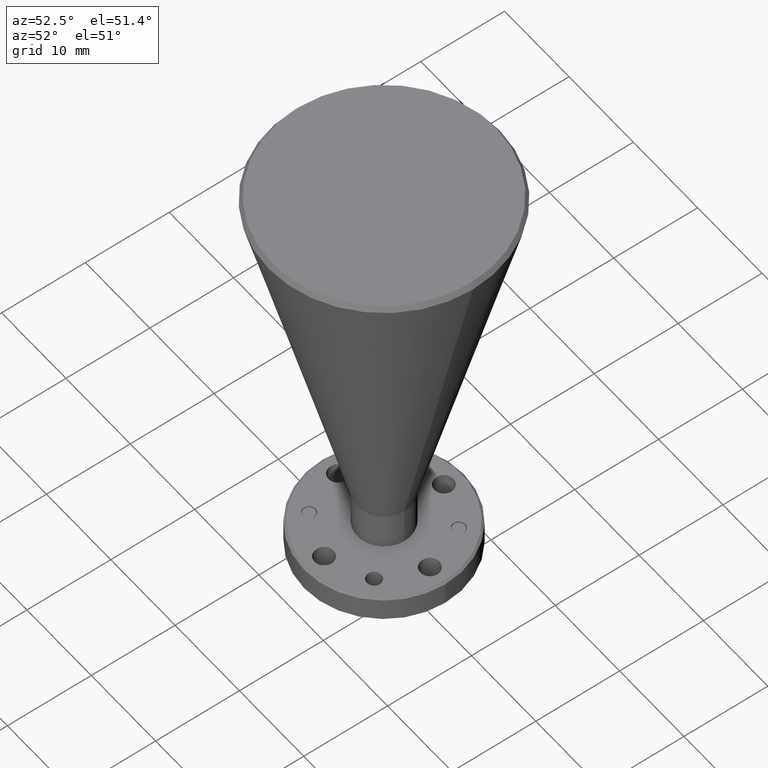
[diagram: clean part render]
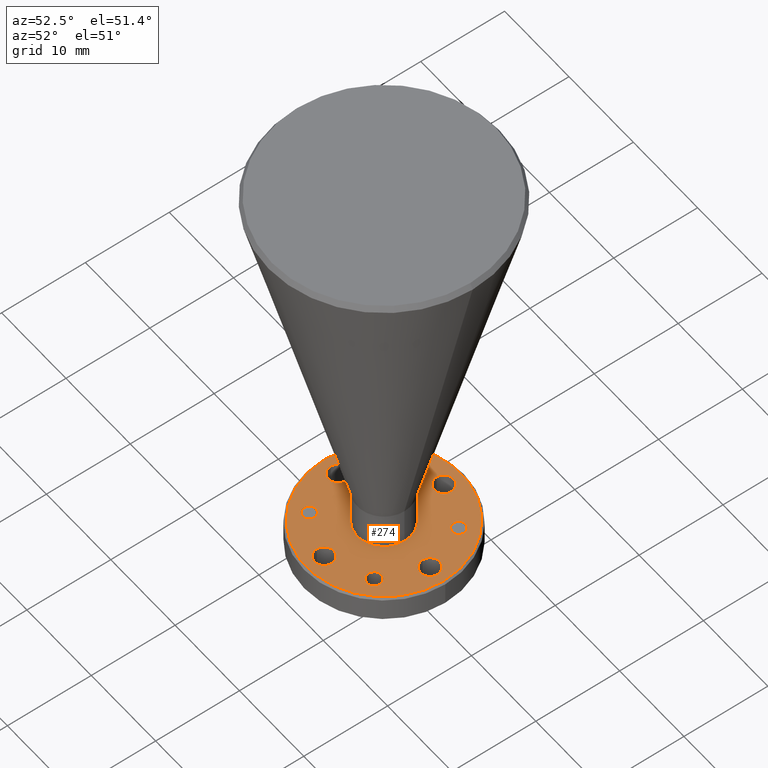
[diagram: same view with one face highlighted and labeled with its STEP entity id]
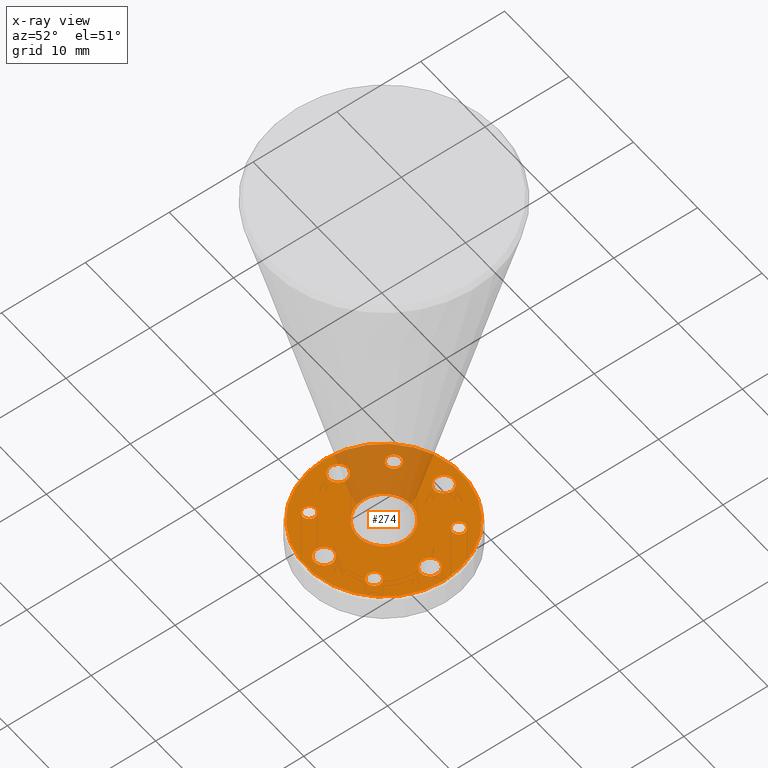
[diagram: x-ray of the same camera — body ghosted, the highlighted face saturated]
A machine part, auxiliary view. The second image highlights one B-rep face of the part: STEP entity #274.
The next image is the same camera in x-ray: the body ghosted, the highlighted face saturated — about 21% of this face is hidden behind the body in this view.
In plain terms, the highlighted planar face has unit normal (0, 0, -1).
Its self-contained STEP definition (entity closure, byte-faithful):
#2 = FACE_BOUND ( 'NONE', #846, .T. ) ;
#4 = EDGE_CURVE ( 'NONE', #1955, #40, #60, .T. ) ;
#6 = AXIS2_PLACEMENT_3D ( 'NONE', #229, #239, #47 ) ;
#35 = CARTESIAN_POINT ( 'NONE',  ( -2.293671977270806300, 1.342798742680591400, -0.5794467715797536600 ) ) ;
#40 = VERTEX_POINT ( 'NONE', #1945 ) ;
#47 = DIRECTION ( 'NONE',  ( -1.000000000000000000, 0.0000000000000000000, 0.0000000000000000000 ) ) ;
#54 = AXIS2_PLACEMENT_3D ( 'NONE', #573, #1686, #881 ) ;
#60 = CIRCLE ( 'NONE', #1168, 0.04449999999999975500 ) ;
#82 = VERTEX_POINT ( 'NONE', #35 ) ;
#93 = CIRCLE ( 'NONE', #1353, 0.04449999999999975500 ) ;
#124 = CIRCLE ( 'NONE', #806, 0.03350000000000006400 ) ;
#136 = DIRECTION ( 'NONE',  ( 0.0000000000000000000, 0.0000000000000000000, -1.000000000000000000 ) ) ;
#143 = DIRECTION ( 'NONE',  ( 0.0000000000000000000, 0.0000000000000000000, -1.000000000000000000 ) ) ;
#155 = VERTEX_POINT ( 'NONE', #1502 ) ;
#189 = ORIENTED_EDGE ( 'NONE', *, *, #387, .T. ) ;
#192 = DIRECTION ( 'NONE',  ( 0.0000000000000000000, 0.0000000000000000000, -1.000000000000000000 ) ) ;
#193 = CIRCLE ( 'NONE', #461, 0.03350000000000006400 ) ;
#196 = EDGE_CURVE ( 'NONE', #1773, #1102, #1963, .T. ) ;
#203 = ORIENTED_EDGE ( 'NONE', *, *, #1071, .T. ) ;
#206 = AXIS2_PLACEMENT_3D ( 'NONE', #1444, #312, #795 ) ;
#215 = DIRECTION ( 'NONE',  ( 0.0000000000000000000, 0.0000000000000000000, -1.000000000000000000 ) ) ;
#222 = DIRECTION ( 'NONE',  ( -0.0000000000000000000, -0.0000000000000000000, 1.000000000000000000 ) ) ;
#229 = CARTESIAN_POINT ( 'NONE',  ( -2.260171977270806200, 1.342798742680591400, -0.5794467715797536600 ) ) ;
#235 = VERTEX_POINT ( 'NONE', #533 ) ;
#239 = DIRECTION ( 'NONE',  ( 0.0000000000000000000, 0.0000000000000000000, -1.000000000000000000 ) ) ;
#253 = ORIENTED_EDGE ( 'NONE', *, *, #196, .T. ) ;
#269 = DIRECTION ( 'NONE',  ( 0.0000000000000000000, 0.0000000000000000000, -1.000000000000000000 ) ) ;
#274 = ADVANCED_FACE ( 'NONE', ( #310, #1836, #2045, #1545, #717, #348, #692, #2, #1067, #1122 ), #1205, .F. ) ;
#276 = CARTESIAN_POINT ( 'NONE',  ( -2.016798195062089700, 1.425174960471875100, -0.5794467715797536600 ) ) ;
#280 = DIRECTION ( 'NONE',  ( -1.000000000000000000, 0.0000000000000000000, 0.0000000000000000000 ) ) ;
#283 = DIRECTION ( 'NONE',  ( -1.000000000000000000, 0.0000000000000000000, 0.0000000000000000000 ) ) ;
#284 = ORIENTED_EDGE ( 'NONE', *, *, #1985, .T. ) ;
#290 = AXIS2_PLACEMENT_3D ( 'NONE', #559, #2004, #860 ) ;
#310 = FACE_OUTER_BOUND ( 'NONE', #1218, .T. ) ;
#312 = DIRECTION ( 'NONE',  ( 0.0000000000000000000, 0.0000000000000000000, -1.000000000000000000 ) ) ;
#335 = ORIENTED_EDGE ( 'NONE', *, *, #964, .T. ) ;
#348 = FACE_BOUND ( 'NONE', #529, .T. ) ;
#349 = VERTEX_POINT ( 'NONE', #1880 ) ;
#373 = CARTESIAN_POINT ( 'NONE',  ( -2.186298195062089400, 1.143924960471874900, -0.5794467715797532200 ) ) ;
#385 = ORIENTED_EDGE ( 'NONE', *, *, #736, .F. ) ;
#387 = EDGE_CURVE ( 'NONE', #560, #1138, #599, .T. ) ;
#393 = VERTEX_POINT ( 'NONE', #1715 ) ;
#421 = EDGE_CURVE ( 'NONE', #1954, #1929, #979, .T. ) ;
#448 = CARTESIAN_POINT ( 'NONE',  ( -2.061298195062089400, 0.8626749604718748600, -0.5794467715797536600 ) ) ;
#449 = CARTESIAN_POINT ( 'NONE',  ( -1.780048195062089400, 1.143924960471874900, -0.5794467715797536600 ) ) ;
#454 = EDGE_CURVE ( 'NONE', #658, #2000, #551, .T. ) ;
#461 = AXIS2_PLACEMENT_3D ( 'NONE', #1106, #143, #1276 ) ;
#463 = CARTESIAN_POINT ( 'NONE',  ( -1.895924412853373200, 0.9450511782631583200, -0.5794467715797536600 ) ) ;
#467 = EDGE_CURVE ( 'NONE', #1777, #1147, #124, .T. ) ;
#483 = DIRECTION ( 'NONE',  ( -1.000000000000000000, 0.0000000000000000000, 0.0000000000000000000 ) ) ;
#501 = CARTESIAN_POINT ( 'NONE',  ( -2.061298195062089400, 0.8626749604718748600, -0.5794467715797536600 ) ) ;
#502 = CIRCLE ( 'NONE', #206, 0.03350000000000006400 ) ;
#506 = CARTESIAN_POINT ( 'NONE',  ( -2.342548195062089900, 1.143924960471874900, -0.5794467715797536600 ) ) ;
#529 = EDGE_LOOP ( 'NONE', ( #537, #1849 ) ) ;
#533 = CARTESIAN_POINT ( 'NONE',  ( -1.893174412853373000, 1.342798742680591400, -0.5794467715797536600 ) ) ;
#537 = ORIENTED_EDGE ( 'NONE', *, *, #454, .T. ) ;
#550 = DIRECTION ( 'NONE',  ( -1.000000000000000000, 0.0000000000000000000, 0.0000000000000000000 ) ) ;
#551 = CIRCLE ( 'NONE', #1493, 0.04449999999999975500 ) ;
#552 = AXIS2_PLACEMENT_3D ( 'NONE', #690, #215, #1184 ) ;
#556 = EDGE_CURVE ( 'NONE', #40, #1955, #93, .T. ) ;
#559 = CARTESIAN_POINT ( 'NONE',  ( -2.061298195062089400, 1.268924960471874900, -0.5794467715797536600 ) ) ;
#560 = VERTEX_POINT ( 'NONE', #1480 ) ;
#566 = DIRECTION ( 'NONE',  ( 0.0000000000000000000, 0.0000000000000000000, -1.000000000000000000 ) ) ;
#573 = CARTESIAN_POINT ( 'NONE',  ( -2.061298195062089400, 1.143924960471874900, -0.5794467715797532200 ) ) ;
#582 = VERTEX_POINT ( 'NONE', #1643 ) ;
#589 = VERTEX_POINT ( 'NONE', #843 ) ;
#599 = CIRCLE ( 'NONE', #1562, 0.04449999999999975500 ) ;
#605 = CARTESIAN_POINT ( 'NONE',  ( -2.061298195062089400, 1.425174960471875100, -0.5794467715797536600 ) ) ;
#608 = DIRECTION ( 'NONE',  ( -1.000000000000000000, 0.0000000000000000000, 0.0000000000000000000 ) ) ;
#619 = DIRECTION ( 'NONE',  ( 0.0000000000000000000, 0.0000000000000000000, -1.000000000000000000 ) ) ;
#639 = EDGE_CURVE ( 'NONE', #155, #82, #755, .T. ) ;
#658 = VERTEX_POINT ( 'NONE', #1347 ) ;
#681 = EDGE_LOOP ( 'NONE', ( #189, #1344 ) ) ;
#689 = CARTESIAN_POINT ( 'NONE',  ( -2.229421977270806400, 0.9450511782631583200, -0.5794467715797536600 ) ) ;
#690 = CARTESIAN_POINT ( 'NONE',  ( -2.061298195062089400, 1.425174960471875100, -0.5794467715797536600 ) ) ;
#692 = FACE_BOUND ( 'NONE', #2027, .T. ) ;
#707 = EDGE_CURVE ( 'NONE', #2000, #658, #2047, .T. ) ;
#716 = EDGE_LOOP ( 'NONE', ( #385, #1302 ) ) ;
#717 = FACE_BOUND ( 'NONE', #1901, .T. ) ;
#727 = DIRECTION ( 'NONE',  ( -0.0000000000000000000, -0.0000000000000000000, 1.000000000000000000 ) ) ;
#736 = EDGE_CURVE ( 'NONE', #349, #1863, #1858, .T. ) ;
#755 = CIRCLE ( 'NONE', #6, 0.03350000000000006400 ) ;
#770 = ORIENTED_EDGE ( 'NONE', *, *, #556, .T. ) ;
#776 = ORIENTED_EDGE ( 'NONE', *, *, #421, .T. ) ;
#780 = EDGE_LOOP ( 'NONE', ( #2062, #1373 ) ) ;
#790 = CARTESIAN_POINT ( 'NONE',  ( -1.735548195062089700, 1.143924960471874900, -0.5794467715797536600 ) ) ;
#795 = DIRECTION ( 'NONE',  ( -1.000000000000000000, 0.0000000000000000000, 0.0000000000000000000 ) ) ;
#805 = CARTESIAN_POINT ( 'NONE',  ( -1.696298195062088100, 1.143924960471874900, -0.5794467715797536600 ) ) ;
#806 = AXIS2_PLACEMENT_3D ( 'NONE', #2087, #136, #1096 ) ;
#843 = CARTESIAN_POINT ( 'NONE',  ( -1.831674412853373100, 1.342798742680591400, -0.5794467715797536600 ) ) ;
#846 = EDGE_LOOP ( 'NONE', ( #2028, #1958 ) ) ;
#849 = CIRCLE ( 'NONE', #2052, 0.04449999999999975500 ) ;
#860 = DIRECTION ( 'NONE',  ( -1.000000000000000000, 0.0000000000000000000, -0.0000000000000000000 ) ) ;
#881 = DIRECTION ( 'NONE',  ( 1.000000000000000000, 0.0000000000000000000, 0.0000000000000000000 ) ) ;
#910 = CARTESIAN_POINT ( 'NONE',  ( -1.780048195062089400, 1.143924960471874900, -0.5794467715797536600 ) ) ;
#949 = CARTESIAN_POINT ( 'NONE',  ( -1.862424412853373100, 1.342798742680591400, -0.5794467715797536600 ) ) ;
#958 = DIRECTION ( 'NONE',  ( 0.0000000000000000000, 0.0000000000000000000, -1.000000000000000000 ) ) ;
#962 = EDGE_CURVE ( 'NONE', #1138, #560, #1259, .T. ) ;
#964 = EDGE_CURVE ( 'NONE', #1102, #1773, #1156, .T. ) ;
#979 = CIRCLE ( 'NONE', #1198, 0.03074999999999993700 ) ;
#1016 = CARTESIAN_POINT ( 'NONE',  ( -2.061298195062089400, 1.143924960471874900, -0.5794467715797532200 ) ) ;
#1029 = ORIENTED_EDGE ( 'NONE', *, *, #4, .T. ) ;
#1049 = AXIS2_PLACEMENT_3D ( 'NONE', #1016, #222, #1513 ) ;
#1067 = FACE_BOUND ( 'NONE', #681, .T. ) ;
#1071 = EDGE_CURVE ( 'NONE', #589, #235, #1510, .T. ) ;
#1079 = CARTESIAN_POINT ( 'NONE',  ( -2.260171977270806200, 0.9450511782631583200, -0.5794467715797536600 ) ) ;
#1085 = CARTESIAN_POINT ( 'NONE',  ( -1.862424412853373100, 1.342798742680591400, -0.5794467715797536600 ) ) ;
#1089 = DIRECTION ( 'NONE',  ( 0.0000000000000000000, 0.0000000000000000000, -1.000000000000000000 ) ) ;
#1096 = DIRECTION ( 'NONE',  ( -1.000000000000000000, 0.0000000000000000000, 0.0000000000000000000 ) ) ;
#1098 = EDGE_CURVE ( 'NONE', #1929, #1954, #1310, .T. ) ;
#1102 = VERTEX_POINT ( 'NONE', #1134 ) ;
#1104 = DIRECTION ( 'NONE',  ( -1.000000000000000000, 0.0000000000000000000, 0.0000000000000000000 ) ) ;
#1106 = CARTESIAN_POINT ( 'NONE',  ( -2.260171977270806200, 1.342798742680591400, -0.5794467715797536600 ) ) ;
#1118 = DIRECTION ( 'NONE',  ( -1.000000000000000000, 0.0000000000000000000, 0.0000000000000000000 ) ) ;
#1122 = FACE_BOUND ( 'NONE', #716, .T. ) ;
#1134 = CARTESIAN_POINT ( 'NONE',  ( -2.426298195062091000, 1.143924960471874900, -0.5794467715797536600 ) ) ;
#1138 = VERTEX_POINT ( 'NONE', #790 ) ;
#1139 = DIRECTION ( 'NONE',  ( 0.0000000000000000000, 0.0000000000000000000, -1.000000000000000000 ) ) ;
#1141 = EDGE_CURVE ( 'NONE', #82, #155, #193, .T. ) ;
#1147 = VERTEX_POINT ( 'NONE', #463 ) ;
#1156 = CIRCLE ( 'NONE', #1580, 0.3650000000000014300 ) ;
#1168 = AXIS2_PLACEMENT_3D ( 'NONE', #1469, #1621, #1453 ) ;
#1184 = DIRECTION ( 'NONE',  ( -1.000000000000000000, 0.0000000000000000000, 0.0000000000000000000 ) ) ;
#1197 = CARTESIAN_POINT ( 'NONE',  ( -2.061298195062089400, 1.143924960471874900, -0.5794467715797536600 ) ) ;
#1198 = AXIS2_PLACEMENT_3D ( 'NONE', #1079, #269, #1104 ) ;
#1205 = PLANE ( 'NONE',  #290 ) ;
#1211 = AXIS2_PLACEMENT_3D ( 'NONE', #1197, #727, #550 ) ;
#1218 = EDGE_LOOP ( 'NONE', ( #335, #253 ) ) ;
#1235 = EDGE_CURVE ( 'NONE', #1147, #1777, #502, .T. ) ;
#1259 = CIRCLE ( 'NONE', #1514, 0.04449999999999975500 ) ;
#1273 = DIRECTION ( 'NONE',  ( -1.000000000000000000, 0.0000000000000000000, 0.0000000000000000000 ) ) ;
#1276 = DIRECTION ( 'NONE',  ( -1.000000000000000000, 0.0000000000000000000, 0.0000000000000000000 ) ) ;
#1298 = AXIS2_PLACEMENT_3D ( 'NONE', #949, #1763, #483 ) ;
#1302 = ORIENTED_EDGE ( 'NONE', *, *, #1547, .F. ) ;
#1310 = CIRCLE ( 'NONE', #1450, 0.03074999999999993700 ) ;
#1328 = DIRECTION ( 'NONE',  ( -1.000000000000000000, 0.0000000000000000000, 0.0000000000000000000 ) ) ;
#1344 = ORIENTED_EDGE ( 'NONE', *, *, #962, .T. ) ;
#1347 = CARTESIAN_POINT ( 'NONE',  ( -2.105798195062089200, 1.425174960471875100, -0.5794467715797536600 ) ) ;
#1353 = AXIS2_PLACEMENT_3D ( 'NONE', #506, #192, #1328 ) ;
#1373 = ORIENTED_EDGE ( 'NONE', *, *, #639, .T. ) ;
#1376 = EDGE_LOOP ( 'NONE', ( #776, #1505 ) ) ;
#1388 = DIRECTION ( 'NONE',  ( -1.000000000000000000, 0.0000000000000000000, 0.0000000000000000000 ) ) ;
#1403 = ORIENTED_EDGE ( 'NONE', *, *, #1235, .T. ) ;
#1414 = DIRECTION ( 'NONE',  ( 0.0000000000000000000, 0.0000000000000000000, -1.000000000000000000 ) ) ;
#1444 = CARTESIAN_POINT ( 'NONE',  ( -1.862424412853373100, 0.9450511782631583200, -0.5794467715797536600 ) ) ;
#1447 = ORIENTED_EDGE ( 'NONE', *, *, #467, .T. ) ;
#1450 = AXIS2_PLACEMENT_3D ( 'NONE', #1456, #958, #1118 ) ;
#1453 = DIRECTION ( 'NONE',  ( -1.000000000000000000, 0.0000000000000000000, 0.0000000000000000000 ) ) ;
#1456 = CARTESIAN_POINT ( 'NONE',  ( -2.260171977270806200, 0.9450511782631583200, -0.5794467715797536600 ) ) ;
#1469 = CARTESIAN_POINT ( 'NONE',  ( -2.342548195062089900, 1.143924960471874900, -0.5794467715797536600 ) ) ;
#1480 = CARTESIAN_POINT ( 'NONE',  ( -1.824548195062089200, 1.143924960471874900, -0.5794467715797536600 ) ) ;
#1493 = AXIS2_PLACEMENT_3D ( 'NONE', #605, #1414, #1273 ) ;
#1500 = AXIS2_PLACEMENT_3D ( 'NONE', #1085, #1089, #283 ) ;
#1502 = CARTESIAN_POINT ( 'NONE',  ( -2.226671977270806100, 1.342798742680591400, -0.5794467715797536600 ) ) ;
#1505 = ORIENTED_EDGE ( 'NONE', *, *, #1098, .T. ) ;
#1510 = CIRCLE ( 'NONE', #1298, 0.03074999999999993700 ) ;
#1513 = DIRECTION ( 'NONE',  ( 1.000000000000000000, 0.0000000000000000000, 0.0000000000000000000 ) ) ;
#1514 = AXIS2_PLACEMENT_3D ( 'NONE', #449, #1887, #1894 ) ;
#1545 = FACE_BOUND ( 'NONE', #780, .T. ) ;
#1547 = EDGE_CURVE ( 'NONE', #1863, #349, #1612, .T. ) ;
#1562 = AXIS2_PLACEMENT_3D ( 'NONE', #910, #566, #1388 ) ;
#1577 = DIRECTION ( 'NONE',  ( -0.0000000000000000000, -0.0000000000000000000, 1.000000000000000000 ) ) ;
#1580 = AXIS2_PLACEMENT_3D ( 'NONE', #2070, #1577, #280 ) ;
#1612 = CIRCLE ( 'NONE', #54, 0.1249999999999999000 ) ;
#1621 = DIRECTION ( 'NONE',  ( 0.0000000000000000000, 0.0000000000000000000, -1.000000000000000000 ) ) ;
#1643 = CARTESIAN_POINT ( 'NONE',  ( -2.016798195062089700, 0.8626749604718748600, -0.5794467715797536600 ) ) ;
#1678 = EDGE_CURVE ( 'NONE', #393, #582, #1881, .T. ) ;
#1686 = DIRECTION ( 'NONE',  ( -0.0000000000000000000, -0.0000000000000000000, 1.000000000000000000 ) ) ;
#1703 = CIRCLE ( 'NONE', #1500, 0.03074999999999993700 ) ;
#1715 = CARTESIAN_POINT ( 'NONE',  ( -2.105798195062089200, 0.8626749604718748600, -0.5794467715797536600 ) ) ;
#1741 = EDGE_CURVE ( 'NONE', #582, #393, #849, .T. ) ;
#1762 = CARTESIAN_POINT ( 'NONE',  ( -1.828924412853373000, 0.9450511782631583200, -0.5794467715797536600 ) ) ;
#1763 = DIRECTION ( 'NONE',  ( 0.0000000000000000000, 0.0000000000000000000, -1.000000000000000000 ) ) ;
#1769 = DIRECTION ( 'NONE',  ( -1.000000000000000000, 0.0000000000000000000, 0.0000000000000000000 ) ) ;
#1773 = VERTEX_POINT ( 'NONE', #805 ) ;
#1777 = VERTEX_POINT ( 'NONE', #1762 ) ;
#1831 = AXIS2_PLACEMENT_3D ( 'NONE', #448, #619, #608 ) ;
#1836 = FACE_BOUND ( 'NONE', #1837, .T. ) ;
#1837 = EDGE_LOOP ( 'NONE', ( #284, #203 ) ) ;
#1849 = ORIENTED_EDGE ( 'NONE', *, *, #707, .T. ) ;
#1858 = CIRCLE ( 'NONE', #1049, 0.1249999999999999000 ) ;
#1863 = VERTEX_POINT ( 'NONE', #373 ) ;
#1880 = CARTESIAN_POINT ( 'NONE',  ( -1.936298195062089700, 1.143924960471874900, -0.5794467715797532200 ) ) ;
#1881 = CIRCLE ( 'NONE', #1831, 0.04449999999999975500 ) ;
#1887 = DIRECTION ( 'NONE',  ( 0.0000000000000000000, 0.0000000000000000000, -1.000000000000000000 ) ) ;
#1894 = DIRECTION ( 'NONE',  ( -1.000000000000000000, 0.0000000000000000000, 0.0000000000000000000 ) ) ;
#1901 = EDGE_LOOP ( 'NONE', ( #1403, #1447 ) ) ;
#1929 = VERTEX_POINT ( 'NONE', #689 ) ;
#1945 = CARTESIAN_POINT ( 'NONE',  ( -2.387048195062089700, 1.143924960471874900, -0.5794467715797536600 ) ) ;
#1954 = VERTEX_POINT ( 'NONE', #2056 ) ;
#1955 = VERTEX_POINT ( 'NONE', #2065 ) ;
#1958 = ORIENTED_EDGE ( 'NONE', *, *, #1741, .T. ) ;
#1963 = CIRCLE ( 'NONE', #1211, 0.3650000000000014300 ) ;
#1985 = EDGE_CURVE ( 'NONE', #235, #589, #1703, .T. ) ;
#2000 = VERTEX_POINT ( 'NONE', #276 ) ;
#2004 = DIRECTION ( 'NONE',  ( 0.0000000000000000000, 0.0000000000000000000, -1.000000000000000000 ) ) ;
#2027 = EDGE_LOOP ( 'NONE', ( #770, #1029 ) ) ;
#2028 = ORIENTED_EDGE ( 'NONE', *, *, #1678, .T. ) ;
#2045 = FACE_BOUND ( 'NONE', #1376, .T. ) ;
#2047 = CIRCLE ( 'NONE', #552, 0.04449999999999975500 ) ;
#2052 = AXIS2_PLACEMENT_3D ( 'NONE', #501, #1139, #1769 ) ;
#2056 = CARTESIAN_POINT ( 'NONE',  ( -2.290921977270806000, 0.9450511782631583200, -0.5794467715797536600 ) ) ;
#2062 = ORIENTED_EDGE ( 'NONE', *, *, #1141, .T. ) ;
#2065 = CARTESIAN_POINT ( 'NONE',  ( -2.298048195062090100, 1.143924960471874900, -0.5794467715797536600 ) ) ;
#2070 = CARTESIAN_POINT ( 'NONE',  ( -2.061298195062089400, 1.143924960471874900, -0.5794467715797536600 ) ) ;
#2087 = CARTESIAN_POINT ( 'NONE',  ( -1.862424412853373100, 0.9450511782631583200, -0.5794467715797536600 ) ) ;